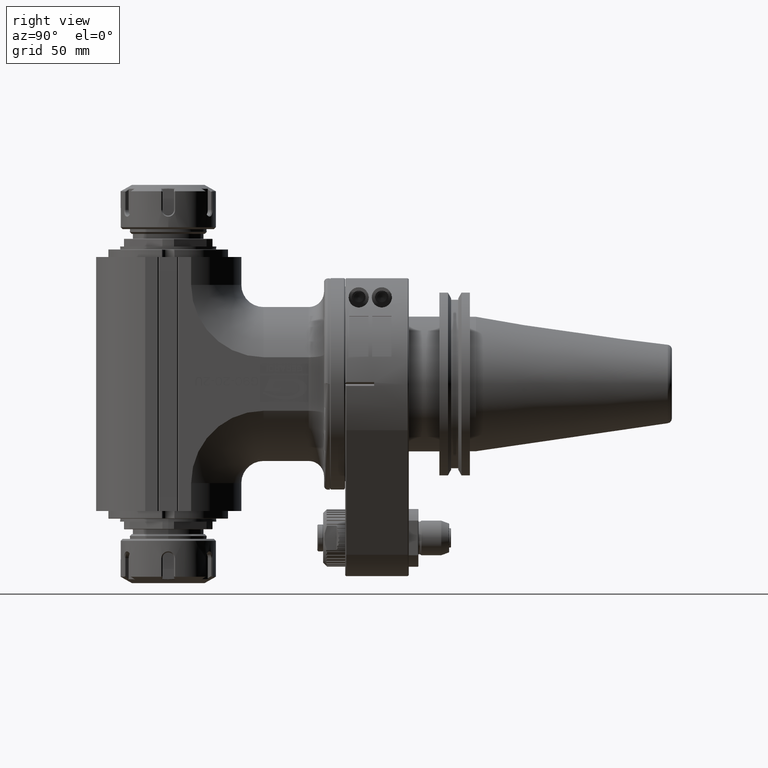
[diagram: clean part render]
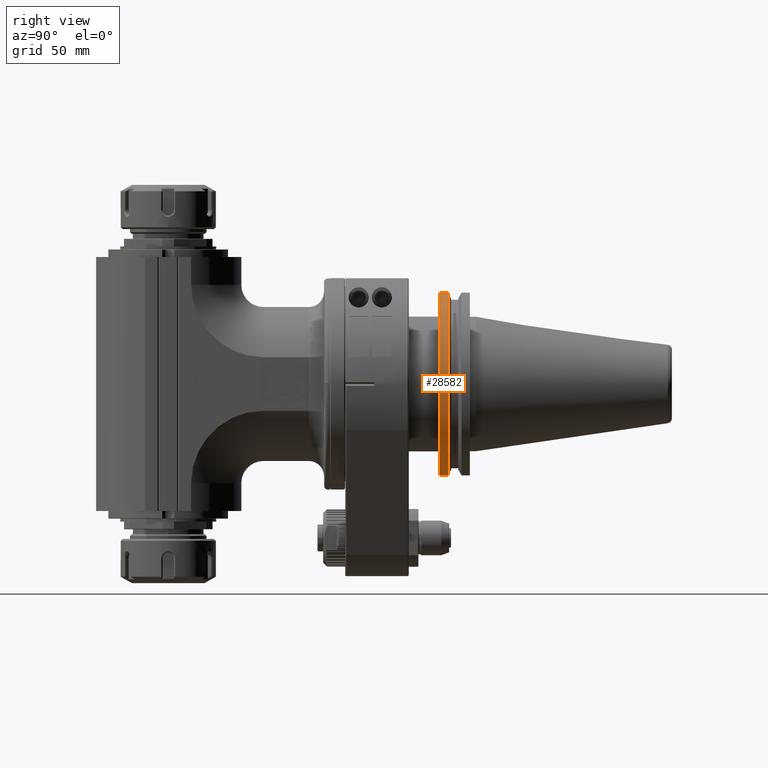
[diagram: same view with one face highlighted and labeled with its STEP entity id]
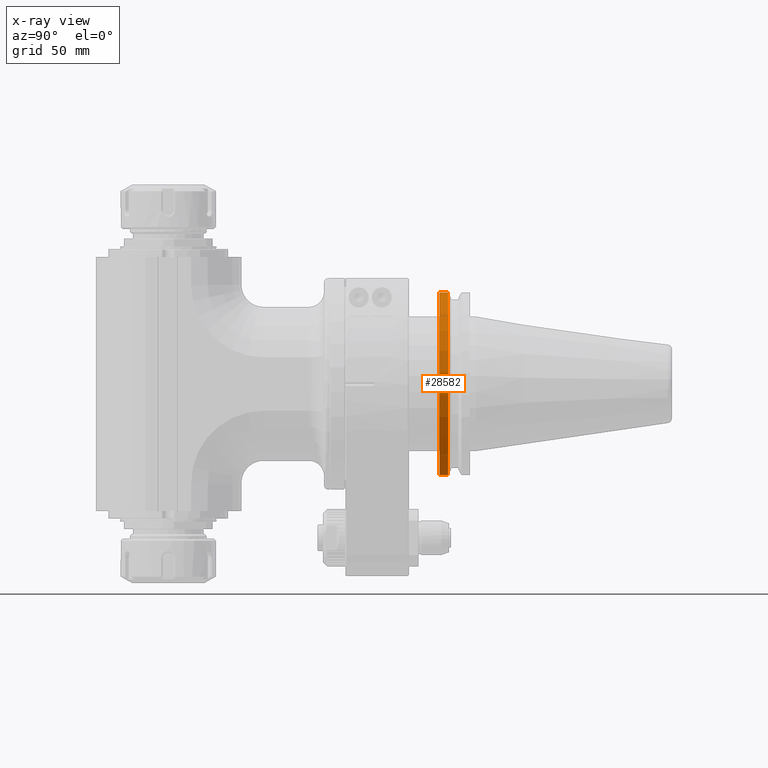
[diagram: x-ray of the same camera — body ghosted, the highlighted face saturated]
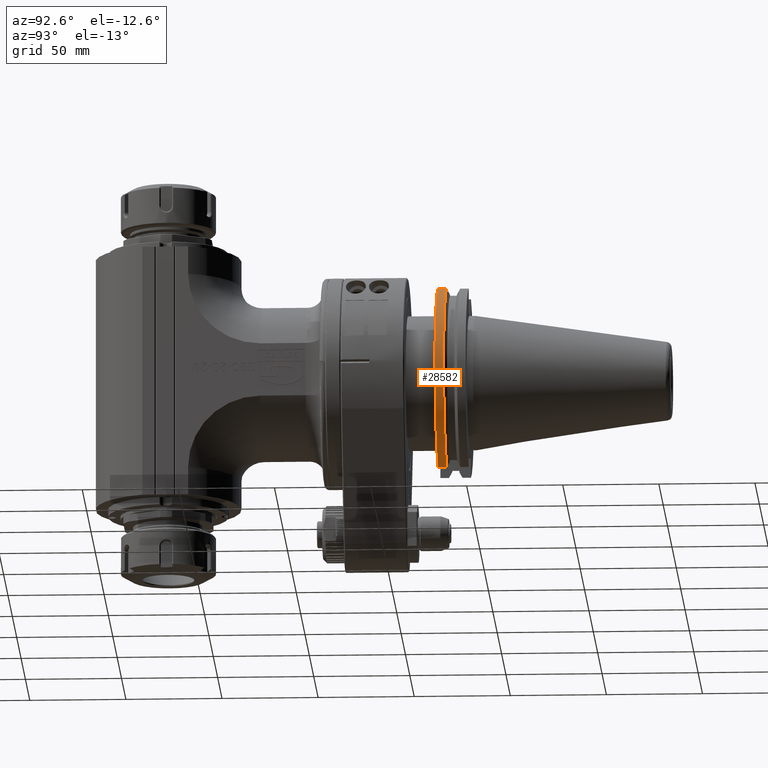
[diagram: same view with one face highlighted and labeled with its STEP entity id]
A machine part, right view. The second image highlights one B-rep face of the part: STEP entity #28582.
The next image is the same camera in x-ray: the body ghosted, the highlighted face saturated — about 0% of this face is hidden behind the body in this view.
A second angle (auxiliary view) of the same face is appended — the face is thin or edge-on in the first view.
In plain terms, the highlighted cylindrical surface (partial cylindrical patch) has radius 49.21 mm, axis along (0, -1, 0).
Its self-contained STEP definition (entity closure, byte-faithful):
#2639=CIRCLE('',#30618,49.21);
#2653=CIRCLE('',#30648,49.21);
#3403=CYLINDRICAL_SURFACE('',#30649,49.21);
#4004=FACE_OUTER_BOUND('',#5600,.T.);
#5600=EDGE_LOOP('',(#21143,#21144,#21145,#21146));
#7496=LINE('',#43256,#10038);
#7508=LINE('',#43306,#10050);
#10038=VECTOR('',#34604,4.486823611981);
#10050=VECTOR('',#34656,4.486823611981);
#12650=VERTEX_POINT('',#43251);
#12651=VERTEX_POINT('',#43255);
#12652=VERTEX_POINT('',#43259);
#12663=VERTEX_POINT('',#43305);
#15771=EDGE_CURVE('',#12650,#12651,#7496,.T.);
#15773=EDGE_CURVE('',#12652,#12651,#2639,.T.);
#15794=EDGE_CURVE('',#12652,#12663,#7508,.T.);
#15806=EDGE_CURVE('',#12650,#12663,#2653,.T.);
#21143=ORIENTED_EDGE('',*,*,#15771,.F.);
#21144=ORIENTED_EDGE('',*,*,#15806,.T.);
#21145=ORIENTED_EDGE('',*,*,#15794,.F.);
#21146=ORIENTED_EDGE('',*,*,#15773,.T.);
#28582=ADVANCED_FACE('',(#4004),#3403,.T.);
#30618=AXIS2_PLACEMENT_3D('',#43260,#34608,#34609);
#30648=AXIS2_PLACEMENT_3D('',#43333,#34683,#34684);
#30649=AXIS2_PLACEMENT_3D('',#43334,#34685,#34686);
#34604=DIRECTION('',(-3.286013233872E-14,-1.,5.067586673924E-14));
#34608=DIRECTION('center_axis',(0.,1.,0.));
#34609=DIRECTION('ref_axis',(0.261125787441599,0.,0.965304782508097));
#34656=DIRECTION('',(3.325603754762E-14,1.,4.750862506803E-14));
#34683=DIRECTION('center_axis',(0.,-1.,0.));
#34684=DIRECTION('ref_axis',(0.261125787441599,0.,-0.965304782508097));
#34685=DIRECTION('center_axis',(0.,-1.,0.));
#34686=DIRECTION('ref_axis',(0.,0.,1.));
#43251=CARTESIAN_POINT('',(12.85,53.386823611981,-47.50264834722));
#43255=CARTESIAN_POINT('',(12.85,48.9000000000001,-47.50264834722));
#43256=CARTESIAN_POINT('',(12.85,53.386823611981,-47.50264834722));
#43259=CARTESIAN_POINT('',(12.85,48.9000000000001,47.50264834722));
#43260=CARTESIAN_POINT('Origin',(0.,48.9000000000003,-1.480248809205E-14));
#43305=CARTESIAN_POINT('',(12.85,53.386823611981,47.50264834722));
#43306=CARTESIAN_POINT('',(12.85,48.9000000000001,47.50264834722));
#43333=CARTESIAN_POINT('Origin',(0.,53.386823611982,-1.480248809205E-14));
#43334=CARTESIAN_POINT('Origin',(0.,175.845,-1.480248809205E-14));